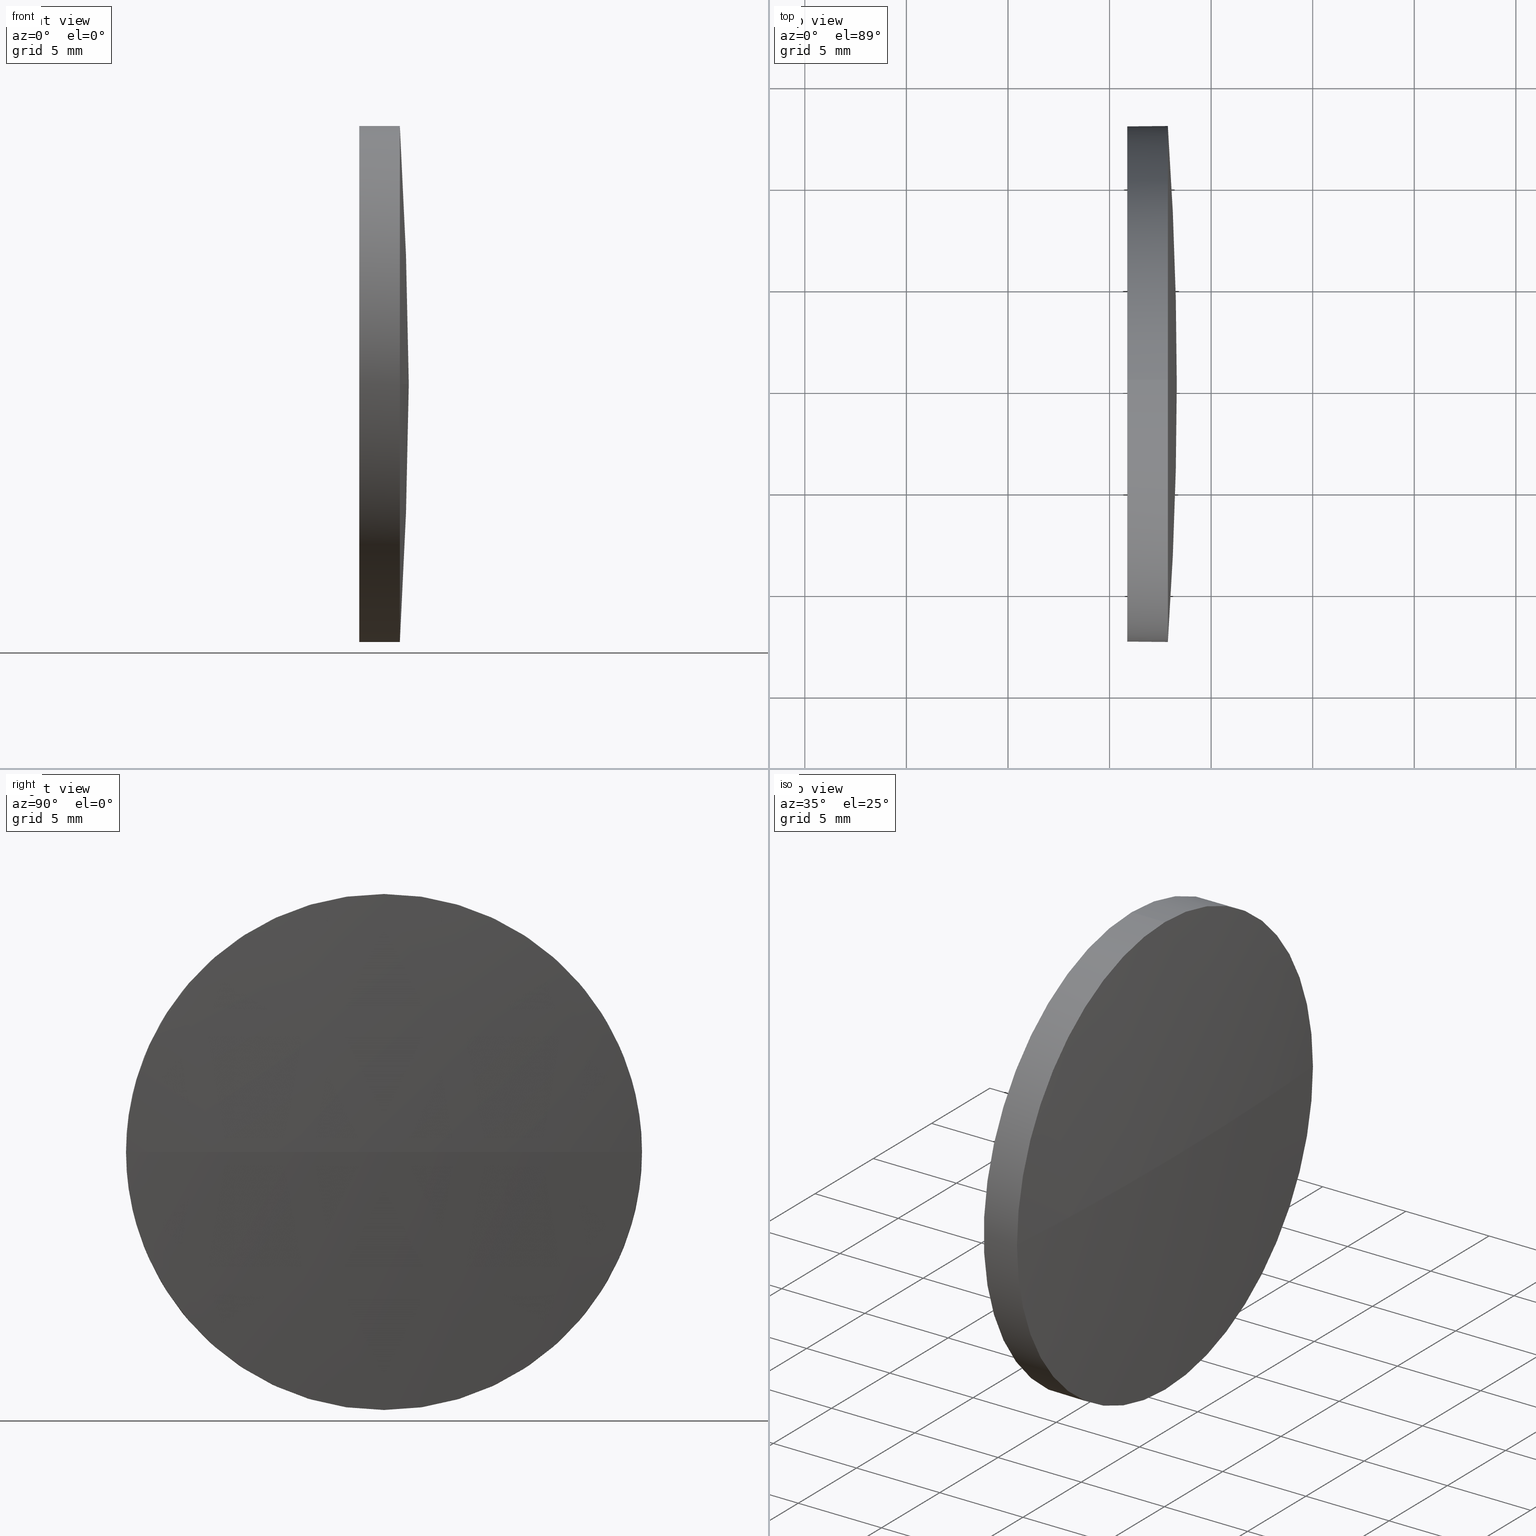
[diagram: canonical four-view strip — front | top / right | iso, engineering-drawing reading convention]
A machine part, canonical four-view strip (front | top / right | iso — engineering-drawing reading convention). The complete STEP part file that produces these views, byte-faithful:
ISO-10303-21;
HEADER;
FILE_DESCRIPTION (( 'STEP AP214' ),
    '1' );
FILE_NAME ('100381.STEP',
    '2019-06-04T09:14:18',
    ( '' ),
    ( '' ),
    'SwSTEP 2.0',
    'SolidWorks 2016',
    '' );
FILE_SCHEMA (( 'AUTOMOTIVE_DESIGN' ));
ENDSEC;

DATA;
#1 = CYLINDRICAL_SURFACE ( 'NONE', #28, 12.70000000000000300 ) ;
#2 = PRODUCT_RELATED_PRODUCT_CATEGORY ( 'part', '', ( #35 ) ) ;
#3 = CARTESIAN_POINT ( 'NONE',  ( 117.8700467759432500, 65.23355492641219700, 0.0000000000000000000 ) ) ;
#4 = PLANE ( 'NONE',  #8 ) ;
#5 = CIRCLE ( 'NONE', #88, 183.5040909090919300 ) ;
#6 = ORIENTED_EDGE ( 'NONE', *, *, #144, .T. ) ;
#7 = DIRECTION ( 'NONE',  ( 0.0000000000000000000, 0.0000000000000000000, 1.000000000000000000 ) ) ;
#8 = AXIS2_PLACEMENT_3D ( 'NONE', #38, #93, #20 ) ;
#9 = CARTESIAN_POINT ( 'NONE',  ( -65.19404413314869400, 65.23355492641219700, 0.0000000000000000000 ) ) ;
#10 = ORIENTED_EDGE ( 'NONE', *, *, #166, .T. ) ;
#11 = DIRECTION ( 'NONE',  ( 0.0000000000000000000, 0.0000000000000000000, 1.000000000000000000 ) ) ;
#12 = DIRECTION ( 'NONE',  ( -0.0000000000000000000, 0.0000000000000000000, -1.000000000000000000 ) ) ;
#13 = DIRECTION ( 'NONE',  ( -1.000000000000000000, -0.0000000000000000000, -0.0000000000000000000 ) ) ;
#14 =( LENGTH_UNIT ( ) NAMED_UNIT ( * ) SI_UNIT ( .MILLI., .METRE. ) );
#15 = FACE_OUTER_BOUND ( 'NONE', #145, .T. ) ;
#16 = EDGE_CURVE ( 'NONE', #87, #50, #18, .T. ) ;
#17 =( GEOMETRIC_REPRESENTATION_CONTEXT ( 3 ) GLOBAL_UNCERTAINTY_ASSIGNED_CONTEXT ( ( #132 ) ) GLOBAL_UNIT_ASSIGNED_CONTEXT ( ( #126, #163, #99 ) ) REPRESENTATION_CONTEXT ( 'NONE', 'WORKASPACE' ) );
#18 = LINE ( 'NONE', #149, #101 ) ;
#19 = CARTESIAN_POINT ( 'NONE',  ( 115.8700467759432500, 65.23355492641219700, -12.70000000000000300 ) ) ;
#20 = DIRECTION ( 'NONE',  ( 0.0000000000000000000, 0.0000000000000000000, -1.000000000000000000 ) ) ;
#21 = ADVANCED_FACE ( 'NONE', ( #89 ), #1, .T. ) ;
#22 = CARTESIAN_POINT ( 'NONE',  ( -65.19404413314869400, 65.23355492641219700, 0.0000000000000000000 ) ) ;
#23 = DIRECTION ( 'NONE',  ( -1.000000000000000000, -0.0000000000000000000, -0.0000000000000000000 ) ) ;
#24 = FILL_AREA_STYLE_COLOUR ( '', #167 ) ;
#25 =( NAMED_UNIT ( * ) SI_UNIT ( $, .STERADIAN. ) SOLID_ANGLE_UNIT ( ) );
#26 = APPLICATION_PROTOCOL_DEFINITION ( 'draft international standard', 'automotive_design', 1998, #183 ) ;
#27 = VERTEX_POINT ( 'NONE', #95 ) ;
#28 = AXIS2_PLACEMENT_3D ( 'NONE', #160, #90, #94 ) ;
#29 = ADVANCED_FACE ( 'NONE', ( #15 ), #4, .F. ) ;
#30 = VERTEX_POINT ( 'NONE', #122 ) ;
#31 = ORIENTED_EDGE ( 'NONE', *, *, #43, .F. ) ;
#32 = EDGE_CURVE ( 'NONE', #51, #143, #33, .T. ) ;
#33 = LINE ( 'NONE', #80, #178 ) ;
#34 = SPHERICAL_SURFACE ( 'NONE', #135, 183.5040909090919300 ) ;
#35 = PRODUCT ( '100381', '100381', '', ( #130 ) ) ;
#36 = AXIS2_PLACEMENT_3D ( 'NONE', #124, #23, #11 ) ;
#37 = EDGE_LOOP ( 'NONE', ( #153, #96, #81, #186, #74 ) ) ;
#38 = CARTESIAN_POINT ( 'NONE',  ( 115.8700467759432500, 65.23355492641219700, 0.0000000000000000000 ) ) ;
#39 = AXIS2_PLACEMENT_3D ( 'NONE', #140, #44, #117 ) ;
#40 = DIRECTION ( 'NONE',  ( 0.0000000000000000000, 0.0000000000000000000, 1.000000000000000000 ) ) ;
#41 = DIRECTION ( 'NONE',  ( -0.0000000000000000000, 0.0000000000000000000, 1.000000000000000000 ) ) ;
#42 = PRODUCT_DEFINITION_CONTEXT ( 'detailed design', #118, 'design' ) ;
#43 = EDGE_CURVE ( 'NONE', #158, #51, #45, .T. ) ;
#44 = DIRECTION ( 'NONE',  ( 0.0000000000000000000, 0.0000000000000000000, 1.000000000000000000 ) ) ;
#45 = CIRCLE ( 'NONE', #58, 12.70000000000000300 ) ;
#46 = EDGE_CURVE ( 'NONE', #87, #158, #182, .T. ) ;
#47 = PRESENTATION_STYLE_ASSIGNMENT (( #180 ) ) ;
#48 = SPHERICAL_SURFACE ( 'NONE', #49, 183.5040909090919300 ) ;
#49 = AXIS2_PLACEMENT_3D ( 'NONE', #100, #12, #97 ) ;
#50 = VERTEX_POINT ( 'NONE', #19 ) ;
#51 = VERTEX_POINT ( 'NONE', #161 ) ;
#52 = CARTESIAN_POINT ( 'NONE',  ( 115.8700467759432500, 65.23355492641219700, 12.70000000000000300 ) ) ;
#53 = CARTESIAN_POINT ( 'NONE',  ( 115.8700467759432500, 65.23355492641219700, 0.0000000000000000000 ) ) ;
#54 = FILL_AREA_STYLE ('',( #113 ) ) ;
#55 = CIRCLE ( 'NONE', #77, 183.5040909090919300 ) ;
#56 = SURFACE_STYLE_USAGE ( .BOTH. , #168 ) ;
#57 = APPLICATION_PROTOCOL_DEFINITION ( 'draft international standard', 'automotive_design', 1998, #118 ) ;
#58 = AXIS2_PLACEMENT_3D ( 'NONE', #123, #78, #7 ) ;
#59 = ORIENTED_EDGE ( 'NONE', *, *, #156, .T. ) ;
#60 = PRODUCT_DEFINITION_SHAPE ( 'NONE', 'NONE',  #75 ) ;
#61 = AXIS2_PLACEMENT_3D ( 'NONE', #3, #139, #176 ) ;
#62 = EDGE_CURVE ( 'NONE', #27, #87, #173, .T. ) ;
#63 = SHAPE_DEFINITION_REPRESENTATION ( #60, #105 ) ;
#64 = ORIENTED_EDGE ( 'NONE', *, *, #16, .T. ) ;
#65 =( NAMED_UNIT ( * ) PLANE_ANGLE_UNIT ( ) SI_UNIT ( $, .RADIAN. ) );
#66 = DIRECTION ( 'NONE',  ( 0.0000000000000000000, 1.224646799147353200E-016, -1.000000000000000000 ) ) ;
#67 = CARTESIAN_POINT ( 'NONE',  ( -65.19404413314869400, 65.23355492641219700, 0.0000000000000000000 ) ) ;
#68 = ORIENTED_EDGE ( 'NONE', *, *, #147, .T. ) ;
#69 = CARTESIAN_POINT ( 'NONE',  ( 117.8700467759432500, 65.23355492641219700, -12.70000000000000300 ) ) ;
#70 = AXIS2_PLACEMENT_3D ( 'NONE', #83, #98, #137 ) ;
#71 = CIRCLE ( 'NONE', #174, 12.70000000000000300 ) ;
#72 = EDGE_LOOP ( 'NONE', ( #114, #64, #133, #111, #59 ) ) ;
#73 = FACE_OUTER_BOUND ( 'NONE', #37, .T. ) ;
#74 = ORIENTED_EDGE ( 'NONE', *, *, #125, .F. ) ;
#75 = PRODUCT_DEFINITION ( 'δ֪', '', #159, #42 ) ;
#76 = ORIENTED_EDGE ( 'NONE', *, *, #166, .F. ) ;
#77 = AXIS2_PLACEMENT_3D ( 'NONE', #67, #41, #179 ) ;
#78 = DIRECTION ( 'NONE',  ( -1.000000000000000000, -0.0000000000000000000, -0.0000000000000000000 ) ) ;
#79 = CYLINDRICAL_SURFACE ( 'NONE', #102, 12.70000000000000300 ) ;
#80 = CARTESIAN_POINT ( 'NONE',  ( 110.1653732284884500, 65.23355492641219700, 12.70000000000000300 ) ) ;
#81 = ORIENTED_EDGE ( 'NONE', *, *, #43, .T. ) ;
#82 = DIRECTION ( 'NONE',  ( -1.000000000000000000, -0.0000000000000000000, -0.0000000000000000000 ) ) ;
#83 = CARTESIAN_POINT ( 'NONE',  ( 117.8700467759432500, 65.23355492641219700, 0.0000000000000000000 ) ) ;
#84 = DIRECTION ( 'NONE',  ( 0.0000000000000000000, 0.0000000000000000000, 1.000000000000000000 ) ) ;
#85 = COLOUR_RGB ( '',1.000000000000000000, 1.000000000000000000, 1.000000000000000000 ) ;
#86 = ADVANCED_FACE ( 'NONE', ( #73 ), #79, .T. ) ;
#87 = VERTEX_POINT ( 'NONE', #69 ) ;
#88 = AXIS2_PLACEMENT_3D ( 'NONE', #9, #66, #112 ) ;
#89 = FACE_OUTER_BOUND ( 'NONE', #72, .T. ) ;
#90 = DIRECTION ( 'NONE',  ( -1.000000000000000000, -0.0000000000000000000, -0.0000000000000000000 ) ) ;
#91 = SURFACE_STYLE_FILL_AREA ( #184 ) ;
#92 = DIRECTION ( 'NONE',  ( -1.000000000000000000, -0.0000000000000000000, -0.0000000000000000000 ) ) ;
#93 = DIRECTION ( 'NONE',  ( 1.000000000000000000, 0.0000000000000000000, 0.0000000000000000000 ) ) ;
#94 = DIRECTION ( 'NONE',  ( 0.0000000000000000000, 0.0000000000000000000, 1.000000000000000000 ) ) ;
#95 = CARTESIAN_POINT ( 'NONE',  ( 117.8700467759432400, 77.93355492641208600, 0.0000000000000000000 ) ) ;
#96 = ORIENTED_EDGE ( 'NONE', *, *, #46, .T. ) ;
#97 = DIRECTION ( 'NONE',  ( 0.0000000000000000000, 1.000000000000000000, 0.0000000000000000000 ) ) ;
#98 = DIRECTION ( 'NONE',  ( -1.000000000000000000, -0.0000000000000000000, -0.0000000000000000000 ) ) ;
#99 =( NAMED_UNIT ( * ) SI_UNIT ( $, .STERADIAN. ) SOLID_ANGLE_UNIT ( ) );
#100 = CARTESIAN_POINT ( 'NONE',  ( -65.19404413314869400, 65.23355492641219700, 0.0000000000000000000 ) ) ;
#101 = VECTOR ( 'NONE', #92, 1000.000000000000000 ) ;
#102 = AXIS2_PLACEMENT_3D ( 'NONE', #151, #13, #40 ) ;
#103 = ADVANCED_FACE ( 'NONE', ( #104 ), #48, .T. ) ;
#104 = FACE_OUTER_BOUND ( 'NONE', #146, .T. ) ;
#105 = ADVANCED_BREP_SHAPE_REPRESENTATION ( '100381', ( #177, #39 ), #106 ) ;
#106 =( GEOMETRIC_REPRESENTATION_CONTEXT ( 3 ) GLOBAL_UNCERTAINTY_ASSIGNED_CONTEXT ( ( #164 ) ) GLOBAL_UNIT_ASSIGNED_CONTEXT ( ( #14, #65, #25 ) ) REPRESENTATION_CONTEXT ( 'NONE', 'WORKASPACE' ) );
#107 = CLOSED_SHELL ( 'NONE', ( #21, #185, #103, #86, #29 ) ) ;
#108 = DIRECTION ( 'NONE',  ( -1.000000000000000000, -0.0000000000000000000, -0.0000000000000000000 ) ) ;
#109 = PRESENTATION_LAYER_ASSIGNMENT (  '', '', ( #134 ) ) ;
#110 = FACE_OUTER_BOUND ( 'NONE', #148, .T. ) ;
#111 = ORIENTED_EDGE ( 'NONE', *, *, #32, .F. ) ;
#112 = DIRECTION ( 'NONE',  ( 0.0000000000000000000, 1.000000000000000000, 1.224646799147353200E-016 ) ) ;
#113 = FILL_AREA_STYLE_COLOUR ( '', #85 ) ;
#114 = ORIENTED_EDGE ( 'NONE', *, *, #62, .T. ) ;
#115 = CARTESIAN_POINT ( 'NONE',  ( 117.8700467759432400, 52.53355492641230700, -1.555301434917125400E-015 ) ) ;
#116 = DIRECTION ( 'NONE',  ( -0.0000000000000000000, 0.0000000000000000000, -1.000000000000000000 ) ) ;
#117 = DIRECTION ( 'NONE',  ( 1.000000000000000000, 0.0000000000000000000, 0.0000000000000000000 ) ) ;
#118 = APPLICATION_CONTEXT ( 'automotive_design' ) ;
#119 = AXIS2_PLACEMENT_3D ( 'NONE', #53, #128, #141 ) ;
#120 = CIRCLE ( 'NONE', #36, 12.70000000000000300 ) ;
#121 = PRESENTATION_STYLE_ASSIGNMENT (( #56 ) ) ;
#122 = CARTESIAN_POINT ( 'NONE',  ( 118.3100467759432300, 65.23355492641221100, 0.0000000000000000000 ) ) ;
#123 = CARTESIAN_POINT ( 'NONE',  ( 117.8700467759432500, 65.23355492641219700, 0.0000000000000000000 ) ) ;
#124 = CARTESIAN_POINT ( 'NONE',  ( 115.8700467759432500, 65.23355492641219700, 0.0000000000000000000 ) ) ;
#125 = EDGE_CURVE ( 'NONE', #50, #143, #120, .T. ) ;
#126 =( LENGTH_UNIT ( ) NAMED_UNIT ( * ) SI_UNIT ( .MILLI., .METRE. ) );
#127 = DIRECTION ( 'NONE',  ( 0.0000000000000000000, 1.000000000000000000, 0.0000000000000000000 ) ) ;
#128 = DIRECTION ( 'NONE',  ( -1.000000000000000000, -0.0000000000000000000, -0.0000000000000000000 ) ) ;
#129 = MECHANICAL_DESIGN_GEOMETRIC_PRESENTATION_REPRESENTATION (  '', ( #134 ), #17 ) ;
#130 = PRODUCT_CONTEXT ( 'NONE', #183, 'mechanical' ) ;
#131 =( NAMED_UNIT ( * ) SI_UNIT ( $, .STERADIAN. ) SOLID_ANGLE_UNIT ( ) );
#132 = UNCERTAINTY_MEASURE_WITH_UNIT (LENGTH_MEASURE( 1.000000000000000100E-005 ), #126, 'distance_accuracy_value', 'NONE');
#133 = ORIENTED_EDGE ( 'NONE', *, *, #144, .F. ) ;
#134 = STYLED_ITEM ( 'NONE', ( #47 ), #177 ) ;
#135 = AXIS2_PLACEMENT_3D ( 'NONE', #22, #116, #127 ) ;
#136 = ORIENTED_EDGE ( 'NONE', *, *, #147, .F. ) ;
#137 = DIRECTION ( 'NONE',  ( 0.0000000000000000000, 0.0000000000000000000, 1.000000000000000000 ) ) ;
#138 = CIRCLE ( 'NONE', #119, 12.70000000000000300 ) ;
#139 = DIRECTION ( 'NONE',  ( -1.000000000000000000, -0.0000000000000000000, -0.0000000000000000000 ) ) ;
#140 = CARTESIAN_POINT ( 'NONE',  ( 0.0000000000000000000, 0.0000000000000000000, 0.0000000000000000000 ) ) ;
#141 = DIRECTION ( 'NONE',  ( 0.0000000000000000000, 0.0000000000000000000, 1.000000000000000000 ) ) ;
#142 =( NAMED_UNIT ( * ) PLANE_ANGLE_UNIT ( ) SI_UNIT ( $, .RADIAN. ) );
#143 = VERTEX_POINT ( 'NONE', #52 ) ;
#144 = EDGE_CURVE ( 'NONE', #143, #50, #138, .T. ) ;
#145 = EDGE_LOOP ( 'NONE', ( #6, #155 ) ) ;
#146 = EDGE_LOOP ( 'NONE', ( #76, #68, #169, #31 ) ) ;
#147 = EDGE_CURVE ( 'NONE', #30, #27, #55, .T. ) ;
#148 = EDGE_LOOP ( 'NONE', ( #136, #10, #175, #172 ) ) ;
#149 = CARTESIAN_POINT ( 'NONE',  ( 110.1653732284884500, 65.23355492641219700, -12.70000000000000300 ) ) ;
#150 = CARTESIAN_POINT ( 'NONE',  ( 117.8700467759432500, 65.23355492641219700, 0.0000000000000000000 ) ) ;
#151 = CARTESIAN_POINT ( 'NONE',  ( 110.1653732284884500, 65.23355492641219700, 0.0000000000000000000 ) ) ;
#152 = MECHANICAL_DESIGN_GEOMETRIC_PRESENTATION_REPRESENTATION (  '', ( #171 ), #162 ) ;
#153 = ORIENTED_EDGE ( 'NONE', *, *, #16, .F. ) ;
#154 =( LENGTH_UNIT ( ) NAMED_UNIT ( * ) SI_UNIT ( .MILLI., .METRE. ) );
#155 = ORIENTED_EDGE ( 'NONE', *, *, #125, .T. ) ;
#156 = EDGE_CURVE ( 'NONE', #51, #27, #71, .T. ) ;
#157 = SURFACE_STYLE_FILL_AREA ( #54 ) ;
#158 = VERTEX_POINT ( 'NONE', #115 ) ;
#159 = PRODUCT_DEFINITION_FORMATION_WITH_SPECIFIED_SOURCE ( '�κ�', '', #35, .NOT_KNOWN. ) ;
#160 = CARTESIAN_POINT ( 'NONE',  ( 110.1653732284884500, 65.23355492641219700, 0.0000000000000000000 ) ) ;
#161 = CARTESIAN_POINT ( 'NONE',  ( 117.8700467759432500, 65.23355492641219700, 12.70000000000000300 ) ) ;
#162 =( GEOMETRIC_REPRESENTATION_CONTEXT ( 3 ) GLOBAL_UNCERTAINTY_ASSIGNED_CONTEXT ( ( #181 ) ) GLOBAL_UNIT_ASSIGNED_CONTEXT ( ( #154, #142, #131 ) ) REPRESENTATION_CONTEXT ( 'NONE', 'WORKASPACE' ) );
#163 =( NAMED_UNIT ( * ) PLANE_ANGLE_UNIT ( ) SI_UNIT ( $, .RADIAN. ) );
#164 = UNCERTAINTY_MEASURE_WITH_UNIT (LENGTH_MEASURE( 1.000000000000000100E-005 ), #14, 'distance_accuracy_value', 'NONE');
#165 = SURFACE_SIDE_STYLE ('',( #157 ) ) ;
#166 = EDGE_CURVE ( 'NONE', #30, #158, #5, .T. ) ;
#167 = COLOUR_RGB ( '',1.000000000000000000, 1.000000000000000000, 1.000000000000000000 ) ;
#168 = SURFACE_SIDE_STYLE ('',( #91 ) ) ;
#169 = ORIENTED_EDGE ( 'NONE', *, *, #156, .F. ) ;
#170 = PRESENTATION_LAYER_ASSIGNMENT (  '', '', ( #171 ) ) ;
#171 = STYLED_ITEM ( 'NONE', ( #121 ), #105 ) ;
#172 = ORIENTED_EDGE ( 'NONE', *, *, #62, .F. ) ;
#173 = CIRCLE ( 'NONE', #70, 12.70000000000000300 ) ;
#174 = AXIS2_PLACEMENT_3D ( 'NONE', #150, #82, #84 ) ;
#175 = ORIENTED_EDGE ( 'NONE', *, *, #46, .F. ) ;
#176 = DIRECTION ( 'NONE',  ( 0.0000000000000000000, 0.0000000000000000000, 1.000000000000000000 ) ) ;
#177 = MANIFOLD_SOLID_BREP ( '��ת1', #107 ) ;
#178 = VECTOR ( 'NONE', #108, 1000.000000000000000 ) ;
#179 = DIRECTION ( 'NONE',  ( 1.000000000000000000, 0.0000000000000000000, 0.0000000000000000000 ) ) ;
#180 = SURFACE_STYLE_USAGE ( .BOTH. , #165 ) ;
#181 = UNCERTAINTY_MEASURE_WITH_UNIT (LENGTH_MEASURE( 1.000000000000000100E-005 ), #154, 'distance_accuracy_value', 'NONE');
#182 = CIRCLE ( 'NONE', #61, 12.70000000000000300 ) ;
#183 = APPLICATION_CONTEXT ( 'automotive_design' ) ;
#184 = FILL_AREA_STYLE ('',( #24 ) ) ;
#185 = ADVANCED_FACE ( 'NONE', ( #110 ), #34, .T. ) ;
#186 = ORIENTED_EDGE ( 'NONE', *, *, #32, .T. ) ;
ENDSEC;
END-ISO-10303-21;
